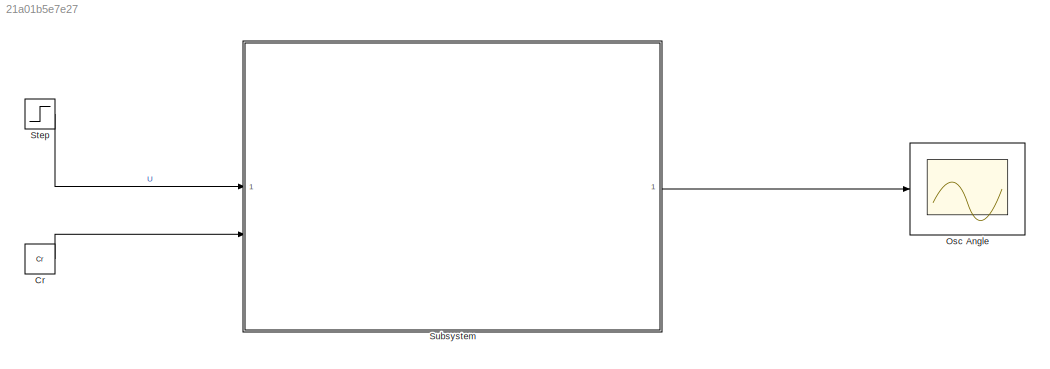
MODEL mdl_21a01b5e7e27
KIND model
CONFIG AbsTol = auto
CONFIG EnableMultiTasking = off
CONFIG FixedStep = auto
CONFIG InitFcn = parameters
CONFIG MaxStep = auto
CONFIG MinStep = auto
CONFIG RelTol = 1e-3
CONFIG SampleTimeConstraint = Unconstrained
CONFIG SolverName = ode15s
CONFIG StartFcn = parameters
CONFIG StartTime = 0.0
CONFIG StopTime = 0.2
BLOCK [Constant] Cr
  Value = Cr
BLOCK [Scope] Osc Angle
  Floating = off
  NumInputPorts = 1
  ScopeSpecificationString = Simulink.scopes.TimeScopeBlockCfg('CurrentConfiguration', extmgr.ConfigurationSet(extmgr.Configuration('Core','General UI',true),extmgr.Configuration('Core','Source UI',true),extmgr.Configuration('Sources','WiredSimulink',true),extmgr.Configuration('Visuals','Time Domain',true,'SerializedDisplays',{struct('MinYLimReal','-4.46903','MaxYLimReal','40.22129','YLabelReal','','MinYLimMag','0.00000','Max...<+1454ch>
BLOCK [Step] Step
  After = U
  SampleTime = 0
  Time = 0.1
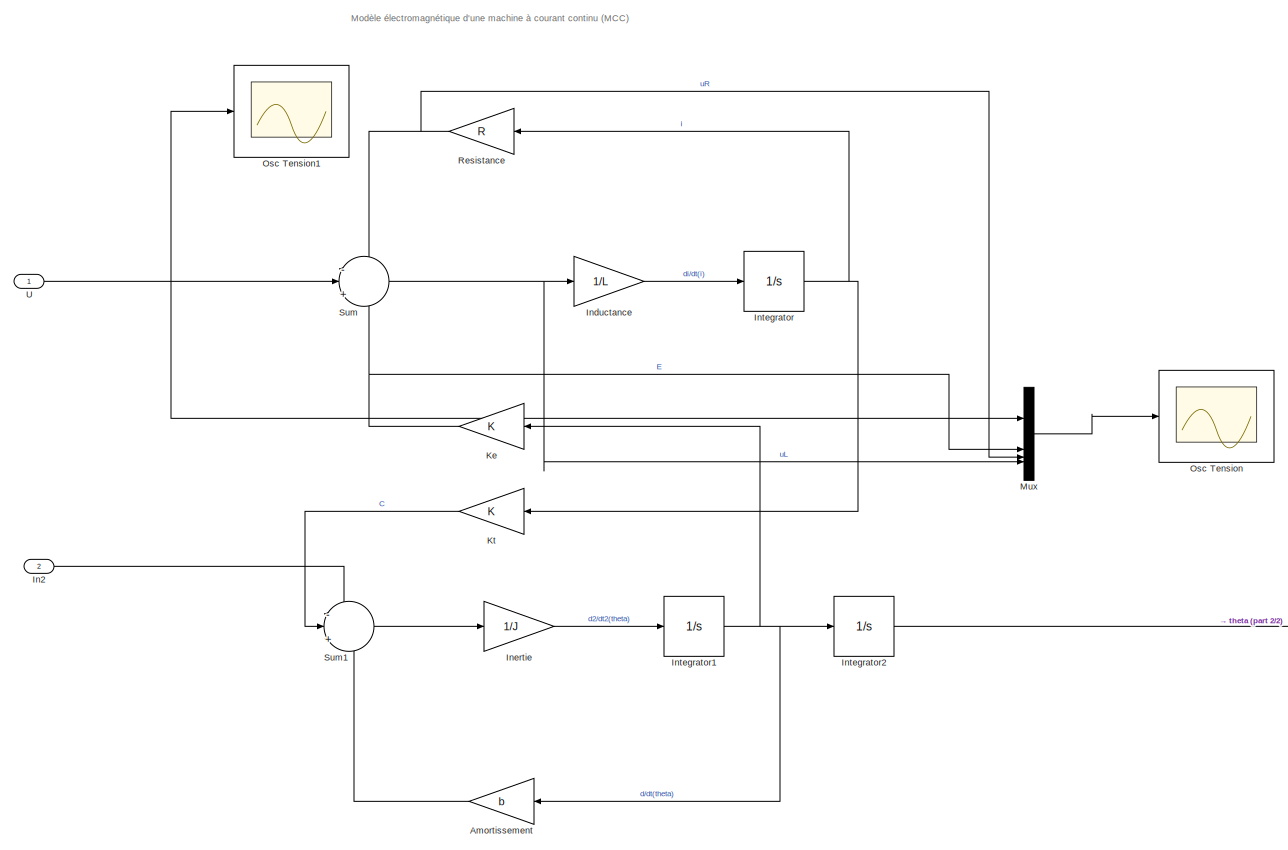
[diagram: Subsystem - part 1/2, center side, full height]
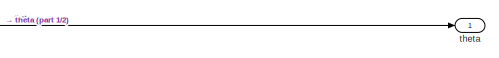
[diagram: Subsystem - part 2/2, bottom right region]
BLOCK [SubSystem] Subsystem
BLOCK [Gain] Subsystem/Amortissement
  Gain = b
BLOCK [Inport] Subsystem/In2
  Port = 2
BLOCK [Gain] Subsystem/Inductance
  Gain = 1/L
BLOCK [Gain] Subsystem/Inertie
  Gain = 1/J
BLOCK [Integrator] Subsystem/Integrator
BLOCK [Integrator] Subsystem/Integrator1
BLOCK [Integrator] Subsystem/Integrator2
BLOCK [Gain] Subsystem/Ke
  Gain = K
BLOCK [Gain] Subsystem/Kt
  Gain = K
BLOCK [Mux] Subsystem/Mux
  DisplayOption = bar
BLOCK [Scope] Subsystem/Osc Tension
  Floating = off
  NumInputPorts = 1
  ScopeSpecificationString = Simulink.scopes.TimeScopeBlockCfg('CurrentConfiguration', extmgr.ConfigurationSet(extmgr.Configuration('Core','General UI',true),extmgr.Configuration('Core','Source UI',true),extmgr.Configuration('Sources','WiredSimulink',true,'DataLoggingVariableName','ScopeData1'),extmgr.Configuration('Visuals','Time Domain',true,'SerializedDisplays',{struct('MinYLimReal','-0.71838','MaxYLimReal','12.46598','YLa...<+1540ch>
BLOCK [Scope] Subsystem/Osc Tension1
  Floating = off
  NumInputPorts = 1
  ScopeSpecificationString = Simulink.scopes.TimeScopeBlockCfg('CurrentConfiguration', extmgr.ConfigurationSet(extmgr.Configuration('Core','General UI',true),extmgr.Configuration('Core','Source UI',true),extmgr.Configuration('Sources','WiredSimulink',true,'DataLoggingVariableName','ScopeData2'),extmgr.Configuration('Visuals','Time Domain',true,'SerializedDisplays',{struct('MinYLimReal','-1.5','MaxYLimReal','13.5','YLabelReal'...<+1461ch>
BLOCK [Gain] Subsystem/Resistance
  Gain = R
BLOCK [Sum] Subsystem/Sum
  Inputs = -|+|-
BLOCK [Sum] Subsystem/Sum1
  Inputs = -|+|-
BLOCK [Inport] Subsystem/U
BLOCK [Outport] Subsystem/theta
ANNOTATION Subsystem: Modèle électromagnétique d'une machine à courant continu (MCC)
LINE Cr:1 -> Subsystem:2
LINE Step:1 -> Subsystem:1
LINE Subsystem/Amortissement:1 -> Subsystem/Sum1:3
LINE Subsystem/In2:1 -> Subsystem/Sum1:1
LINE Subsystem/Inductance:1 -> Subsystem/Integrator:1
LINE Subsystem/Inertie:1 -> Subsystem/Integrator1:1
NET Subsystem/Integrator1:1 -> Subsystem/Amortissement:1, Subsystem/Integrator2:1, Subsystem/Ke:1
LINE Subsystem/Integrator2:1 -> Subsystem/theta:1
NET Subsystem/Integrator:1 -> Subsystem/Kt:1, Subsystem/Resistance:1
NET Subsystem/Ke:1 -> Subsystem/Mux:2, Subsystem/Sum:3
LINE Subsystem/Kt:1 -> Subsystem/Sum1:2
LINE Subsystem/Mux:1 -> Subsystem/Osc Tension:1
NET Subsystem/Resistance:1 -> Subsystem/Mux:3, Subsystem/Sum:1
LINE Subsystem/Sum1:1 -> Subsystem/Inertie:1
NET Subsystem/Sum:1 -> Subsystem/Inductance:1, Subsystem/Mux:4
NET Subsystem/U:1 -> Subsystem/Mux:1, Subsystem/Osc Tension1:1, Subsystem/Sum:2
LINE Subsystem:1 -> Osc Angle:1
note: NET lines group one-source signal fan-out (src -> all destinations, sorted); 1:1 wires keep LINE
